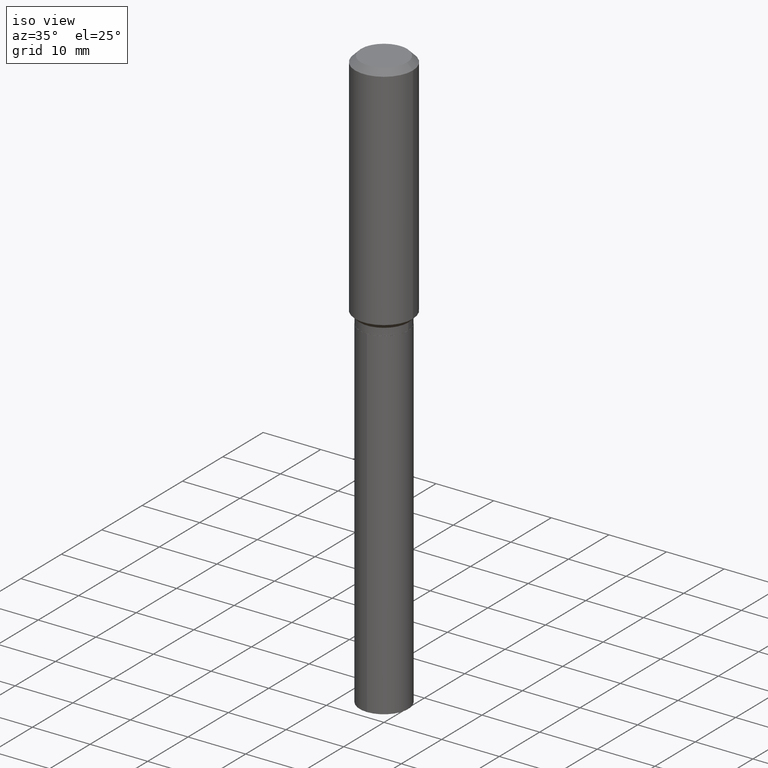
[diagram: clean part render]
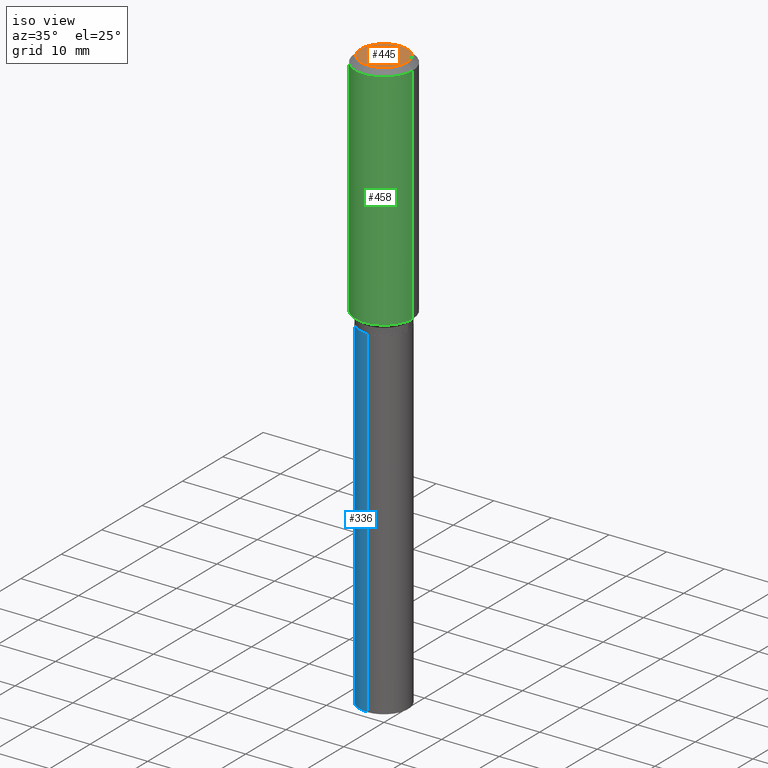
[diagram: same view with three faces highlighted in distinct colors, each labeled with its STEP entity id]
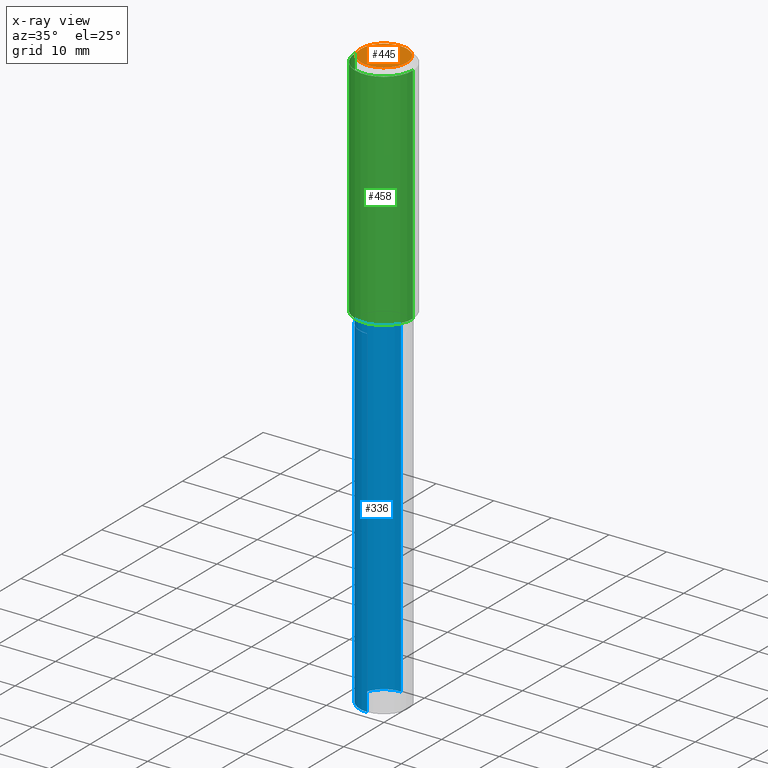
[diagram: x-ray of the same camera — body ghosted, the three highlighted faces saturated]
A machine part, iso view with three faces highlighted in distinct colors.
The next image is the same camera in x-ray (body ghosted, the three faces saturated) — at least one of them is partly hidden behind the body in this view.
Their STEP definitions:

[orange] entity #445 — the highlighted planar face has unit normal (0, -0, -1).
#31 = ORIENTED_EDGE ( 'NONE', *, *, #465, .T. ) ;
#46 = DIRECTION ( 'NONE',  ( 1.000000000000000000, -6.982962677686265922E-15, 4.876223630392693006E-29 ) ) ;
#67 = AXIS2_PLACEMENT_3D ( 'NONE', #446, #325, #105 ) ;
#70 = VERTEX_POINT ( 'NONE', #255 ) ;
#92 = VERTEX_POINT ( 'NONE', #186 ) ;
#105 = DIRECTION ( 'NONE',  ( 1.000000000000000000, -6.982962677686265922E-15, 4.876223630392693006E-29 ) ) ;
#129 = DIRECTION ( 'NONE',  ( -2.445468806185136597E-29, 3.491481338843145583E-15, 1.000000000000000000 ) ) ;
#182 = AXIS2_PLACEMENT_3D ( 'NONE', #319, #406, #284 ) ;
#186 = CARTESIAN_POINT ( 'NONE',  ( 0.1574800000000000089, -1.284169937930321386E-15, 3.855188123724205385E-18 ) ) ;
#188 = AXIS2_PLACEMENT_3D ( 'NONE', #432, #129, #46 ) ;
#255 = CARTESIAN_POINT ( 'NONE',  ( -0.1574800000000000089, 1.168406772637159815E-15, 3.855188123707939751E-18 ) ) ;
#284 = DIRECTION ( 'NONE',  ( -1.000000000000000000, 6.982962677686265922E-15, -4.876176775795935793E-29 ) ) ;
#286 = FACE_OUTER_BOUND ( 'NONE', #334, .T. ) ;
#289 = CIRCLE ( 'NONE', #67, 0.1574800000000000089 ) ;
#315 = ORIENTED_EDGE ( 'NONE', *, *, #370, .T. ) ;
#319 = CARTESIAN_POINT ( 'NONE',  ( -4.713871149261283817E-47, 6.730158695841841775E-33, 1.927594061857935365E-18 ) ) ;
#325 = DIRECTION ( 'NONE',  ( -2.445468806185136597E-29, 3.491481338843145583E-15, 1.000000000000000000 ) ) ;
#334 = EDGE_LOOP ( 'NONE', ( #315, #31 ) ) ;
#365 = PLANE ( 'NONE',  #182 ) ;
#370 = EDGE_CURVE ( 'NONE', #70, #92, #377, .T. ) ;
#377 = CIRCLE ( 'NONE', #188, 0.1574800000000000089 ) ;
#406 = DIRECTION ( 'NONE',  ( 2.438088387897960049E-29, -3.491481338843145188E-15, -1.000000000000000000 ) ) ;
#432 = CARTESIAN_POINT ( 'NONE',  ( -9.427742298522567634E-47, 1.346031739168368355E-32, 3.855188123715870730E-18 ) ) ;
#445 = ADVANCED_FACE ( 'NONE', ( #286 ), #365, .F. ) ;
#446 = CARTESIAN_POINT ( 'NONE',  ( -9.427742298522567634E-47, 1.346031739168368355E-32, 3.855188123715870730E-18 ) ) ;
#465 = EDGE_CURVE ( 'NONE', #92, #70, #289, .T. ) ;

[blue] entity #336 — the highlighted cylindrical surface (edge-blend (fillet) strip) has radius 4.2164 mm, axis along (-0, 0, 1).
#13 = ORIENTED_EDGE ( 'NONE', *, *, #260, .F. ) ;
#40 = CIRCLE ( 'NONE', #430, 0.1660000000000000087 ) ;
#54 = CARTESIAN_POINT ( 'NONE',  ( 1.179500941361863992E-15, 0.1659999999999860754, -3.989610861047919954 ) ) ;
#63 = EDGE_CURVE ( 'NONE', #308, #123, #443, .T. ) ;
#74 = CARTESIAN_POINT ( 'NONE',  ( 1.179500941361806799E-15, 0.1659999999999942355, -1.653400000000000203 ) ) ;
#75 = DIRECTION ( 'NONE',  ( -2.445540233102860683E-29, 3.491379051431596884E-15, 1.000000000000000000 ) ) ;
#91 = DIRECTION ( 'NONE',  ( -2.445540233102860963E-29, 3.491379051431596489E-15, 1.000000000000000000 ) ) ;
#103 = EDGE_CURVE ( 'NONE', #396, #171, #414, .T. ) ;
#120 = CYLINDRICAL_SURFACE ( 'NONE', #257, 0.1660000000000000087 ) ;
#123 = VERTEX_POINT ( 'NONE', #264 ) ;
#124 = CARTESIAN_POINT ( 'NONE',  ( 4.043338124146503856E-29, -5.772815245643255193E-15, -1.653399999999999537 ) ) ;
#131 = DIRECTION ( 'NONE',  ( -6.982962677686266711E-15, -1.000000000000000000, 3.291383124896702687E-15 ) ) ;
#154 = CARTESIAN_POINT ( 'NONE',  ( 1.179500941361864189E-15, 0.1659999999999942355, -1.653400000000000203 ) ) ;
#171 = VERTEX_POINT ( 'NONE', #154 ) ;
#199 = DIRECTION ( 'NONE',  ( -6.982962677686266711E-15, -1.000000000000000000, 3.291383124896702687E-15 ) ) ;
#205 = CARTESIAN_POINT ( 'NONE',  ( -1.159171804495822755E-15, -0.1660000000000139420, -3.989610861047919066 ) ) ;
#242 = EDGE_LOOP ( 'NONE', ( #390, #469, #482, #13 ) ) ;
#257 = AXIS2_PLACEMENT_3D ( 'NONE', #124, #462, #266 ) ;
#260 = EDGE_CURVE ( 'NONE', #171, #123, #40, .T. ) ;
#262 = VECTOR ( 'NONE', #484, 39.37007874015748143 ) ;
#264 = CARTESIAN_POINT ( 'NONE',  ( -1.159171804495879750E-15, -0.1660000000000057818, -1.653399999999999093 ) ) ;
#266 = DIRECTION ( 'NONE',  ( -6.982962677686266711E-15, -1.000000000000000000, 3.291383124896702687E-15 ) ) ;
#302 = VECTOR ( 'NONE', #75, 39.37007874015748143 ) ;
#308 = VERTEX_POINT ( 'NONE', #205 ) ;
#314 = CIRCLE ( 'NONE', #332, 0.1660000000000000087 ) ;
#317 = CARTESIAN_POINT ( 'NONE',  ( 9.756635777851070413E-29, -1.392941290563293579E-14, -3.989610861047919510 ) ) ;
#332 = AXIS2_PLACEMENT_3D ( 'NONE', #317, #91, #131 ) ;
#336 = ADVANCED_FACE ( 'NONE', ( #362 ), #120, .T. ) ;
#353 = CARTESIAN_POINT ( 'NONE',  ( 4.043338124146503856E-29, -5.772815245643255193E-15, -1.653399999999999537 ) ) ;
#362 = FACE_OUTER_BOUND ( 'NONE', #242, .T. ) ;
#371 = CARTESIAN_POINT ( 'NONE',  ( -1.159171804495879750E-15, -0.1660000000000057818, -1.653399999999999093 ) ) ;
#379 = EDGE_CURVE ( 'NONE', #396, #308, #314, .T. ) ;
#389 = DIRECTION ( 'NONE',  ( -2.445540233102860963E-29, 3.491379051431596489E-15, 1.000000000000000000 ) ) ;
#390 = ORIENTED_EDGE ( 'NONE', *, *, #103, .F. ) ;
#396 = VERTEX_POINT ( 'NONE', #54 ) ;
#414 = LINE ( 'NONE', #74, #302 ) ;
#430 = AXIS2_PLACEMENT_3D ( 'NONE', #353, #389, #199 ) ;
#443 = LINE ( 'NONE', #371, #262 ) ;
#462 = DIRECTION ( 'NONE',  ( -2.445540233102860963E-29, 3.491379051431596489E-15, 1.000000000000000000 ) ) ;
#469 = ORIENTED_EDGE ( 'NONE', *, *, #379, .T. ) ;
#482 = ORIENTED_EDGE ( 'NONE', *, *, #63, .T. ) ;
#484 = DIRECTION ( 'NONE',  ( -2.445540233102860683E-29, 3.491379051431596884E-15, 1.000000000000000000 ) ) ;

[green] entity #458 — the highlighted cylindrical surface (edge-blend (fillet) strip) has radius 5 mm, axis along (-0, 0, 1).
#10 = AXIS2_PLACEMENT_3D ( 'NONE', #237, #12, #307 ) ;
#12 = DIRECTION ( 'NONE',  ( -2.445468806185136597E-29, 3.491481338843145583E-15, 1.000000000000000000 ) ) ;
#15 = CARTESIAN_POINT ( 'NONE',  ( 0.1968500000000002192, -6.864426886232561212E-15, -1.572349999999999692 ) ) ;
#33 = VECTOR ( 'NONE', #299, 39.37007874015748143 ) ;
#36 = LINE ( 'NONE', #189, #72 ) ;
#41 = AXIS2_PLACEMENT_3D ( 'NONE', #173, #442, #253 ) ;
#72 = VECTOR ( 'NONE', #191, 39.37007874015748143 ) ;
#84 = EDGE_CURVE ( 'NONE', #216, #375, #36, .T. ) ;
#104 = CIRCLE ( 'NONE', #407, 0.1968500000000000527 ) ;
#108 = ORIENTED_EDGE ( 'NONE', *, *, #84, .F. ) ;
#112 = EDGE_CURVE ( 'NONE', #279, #180, #457, .T. ) ;
#130 = ORIENTED_EDGE ( 'NONE', *, *, #172, .F. ) ;
#133 = FACE_OUTER_BOUND ( 'NONE', #361, .T. ) ;
#161 = CARTESIAN_POINT ( 'NONE',  ( -0.1968500000000000527, -1.414941776376378819E-15, -0.03937000000000027283 ) ) ;
#172 = EDGE_CURVE ( 'NONE', #375, #180, #104, .T. ) ;
#173 = CARTESIAN_POINT ( 'NONE',  ( 0.000000000000000000, 0.000000000000000000, 0.000000000000000000 ) ) ;
#180 = VERTEX_POINT ( 'NONE', #296 ) ;
#189 = CARTESIAN_POINT ( 'NONE',  ( -0.1968500000000001082, 1.398703375343757985E-15, -9.682923725166787881E-30 ) ) ;
#191 = DIRECTION ( 'NONE',  ( -2.445468806185136877E-29, 3.491481338843145188E-15, 1.000000000000000000 ) ) ;
#216 = VERTEX_POINT ( 'NONE', #380 ) ;
#220 = CARTESIAN_POINT ( 'NONE',  ( 9.627810689950950651E-31, -1.374596203102555808E-16, -0.03937000000000027283 ) ) ;
#226 = DIRECTION ( 'NONE',  ( -2.445468806185136597E-29, 3.491481338843145583E-15, 1.000000000000000000 ) ) ;
#237 = CARTESIAN_POINT ( 'NONE',  ( 3.845132877405198741E-29, -5.489830683130018815E-15, -1.572349999999999692 ) ) ;
#253 = DIRECTION ( 'NONE',  ( 1.000000000000000000, -6.982962677686266711E-15, 4.876176775795935793E-29 ) ) ;
#274 = ORIENTED_EDGE ( 'NONE', *, *, #112, .T. ) ;
#279 = VERTEX_POINT ( 'NONE', #15 ) ;
#296 = CARTESIAN_POINT ( 'NONE',  ( 0.1968500000000000527, -1.512055823412797583E-15, -0.03937000000000027283 ) ) ;
#299 = DIRECTION ( 'NONE',  ( -2.445468806185136877E-29, 3.491481338843145188E-15, 1.000000000000000000 ) ) ;
#300 = DIRECTION ( 'NONE',  ( 1.000000000000000000, -6.982962677686266711E-15, 0.000000000000000000 ) ) ;
#307 = DIRECTION ( 'NONE',  ( 1.000000000000000000, -6.982962677686265922E-15, 0.000000000000000000 ) ) ;
#337 = CARTESIAN_POINT ( 'NONE',  ( 0.1968500000000001082, -1.374596203102542397E-15, 9.598753983154305062E-30 ) ) ;
#361 = EDGE_LOOP ( 'NONE', ( #108, #486, #274, #130 ) ) ;
#375 = VERTEX_POINT ( 'NONE', #161 ) ;
#380 = CARTESIAN_POINT ( 'NONE',  ( -0.1968500000000002192, -4.091127307786260239E-15, -1.572349999999999692 ) ) ;
#394 = EDGE_CURVE ( 'NONE', #216, #279, #470, .T. ) ;
#407 = AXIS2_PLACEMENT_3D ( 'NONE', #220, #226, #300 ) ;
#439 = CYLINDRICAL_SURFACE ( 'NONE', #41, 0.1968500000000001082 ) ;
#442 = DIRECTION ( 'NONE',  ( -2.445468806185136597E-29, 3.491481338843145583E-15, 1.000000000000000000 ) ) ;
#457 = LINE ( 'NONE', #337, #33 ) ;
#458 = ADVANCED_FACE ( 'NONE', ( #133 ), #439, .T. ) ;
#470 = CIRCLE ( 'NONE', #10, 0.1968500000000002192 ) ;
#486 = ORIENTED_EDGE ( 'NONE', *, *, #394, .T. ) ;